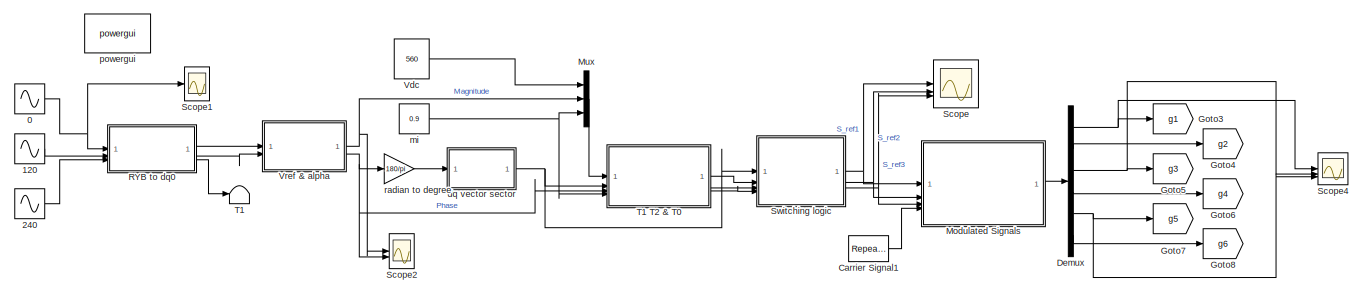
[diagram: root canvas - part 1/2, full width, top band]
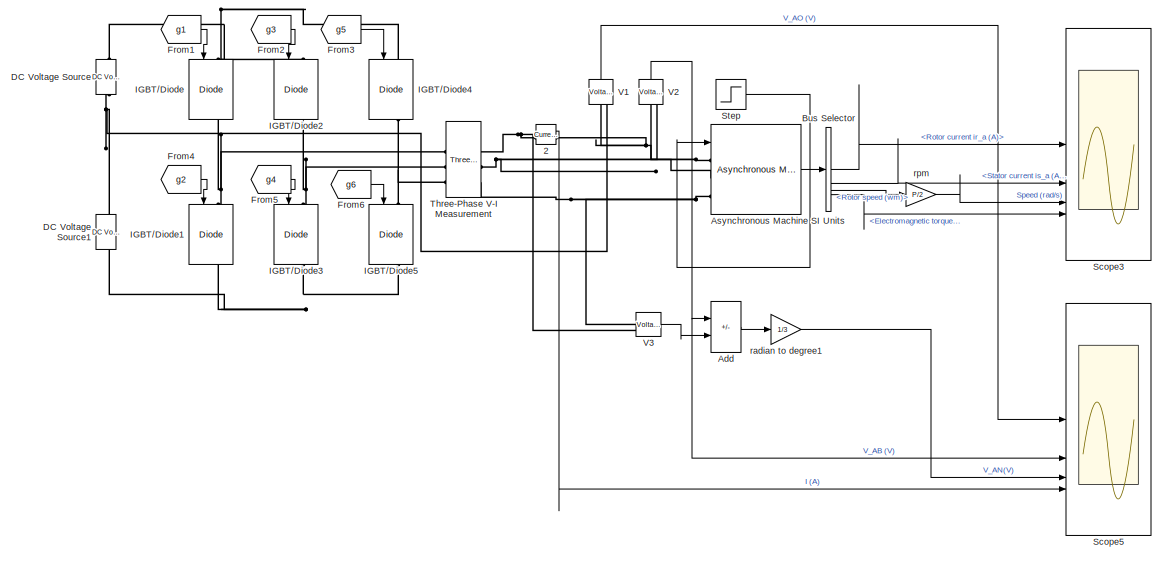
[diagram: root canvas - part 2/2, full width, bottom band]
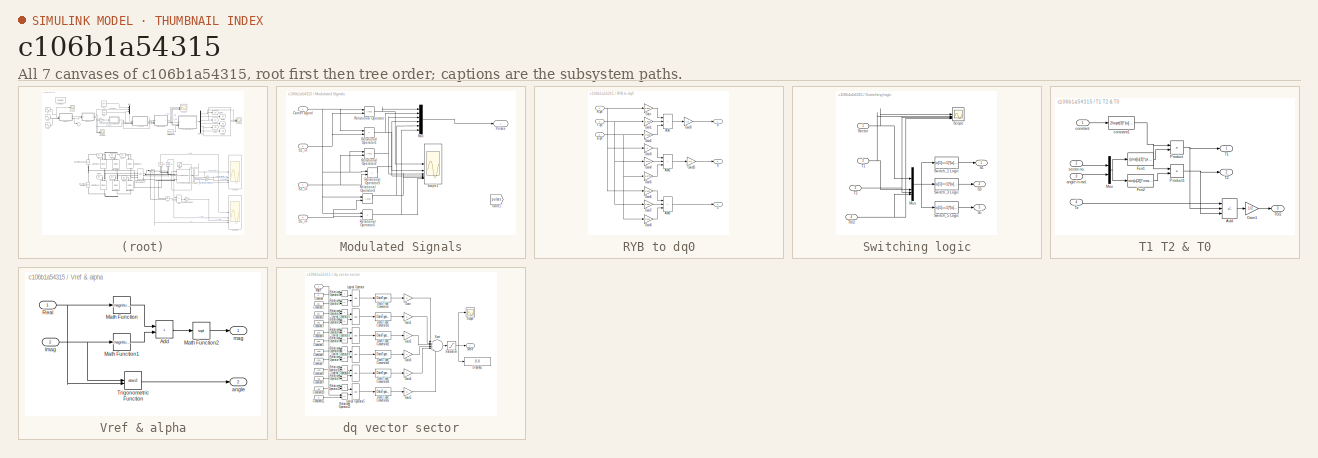
[diagram: thumbnail index - all 7 canvases of the model, root first then tree order]
MODEL slx_c106b1a54315
KIND model
CONFIG AbsTol = auto
CONFIG EnableMultiTasking = off
CONFIG FixedStep = auto
CONFIG InitFcn = clear;\nclc;\n%Induction machine model\nRs=1.5313;\nRr=1.5313;\nRr1=Rr;\nRr=1*Rr;\nM=0.21;\nLs=0.2194;\nLr=Ls;\nLls=0.0094;\nLlr=Lls;\nJ=0.25;\nP=4;\n%B=0.0248;\nTs=Ls/Rs;\nTr=Lr/Rr1;\nsigma=1-M*M/(Ls*Lr);\nsigma_s=Lls/M;\nsigma_r=Llr/M;\nKt=(2/3)*(P/2)*M/(1+sigma_r);\nC=Lr*Ls-M*M;\nG=17.4;\nImr_rated=6.439;\n\n\n%Controller parameters\nvsd_lim=13.015;\nvsq_lim=26.613;\nisq_lim=14.483*Kt*Imr_rated;\nisd_lim=7.083;\nTd=0.012; %d...<+228ch>
CONFIG MaxStep = auto
CONFIG MinStep = auto
CONFIG RelTol = 1e-3
CONFIG SampleTimeConstraint = Unconstrained
CONFIG SolverName = VariableStepAuto
CONFIG StartTime = 0.0
CONFIG StopTime = 10.0
BLOCK [Sin] 0
  Amplitude = 230*1.414
  Frequency = 2*pi*50
  SampleTime = 0
BLOCK [Sin] 120
  Amplitude = 230*1.414
  Frequency = 2*pi*50
  Phase = -(2*pi)/3
  SampleTime = 0
BLOCK [Reference] 2  REF=spsCurrentMeasurementLib/Current Measurement
  LibrarySourceBlock = sps_lib/Sensors and Measurements/Current Measurement
  SourceBlock = spsCurrentMeasurementLib/Current Measurement
  SourceType = Current Measurement
BLOCK [Sin] 240
  Amplitude = 230*1.414
  Frequency = 2*pi*50
  Phase = (2*pi)/3
  SampleTime = 0
BLOCK [Sum] Add
  IconShape = rectangular
  Inputs = +-
BLOCK [Reference] Asynchronous Machine SI Units  REF=spsAsynchronousMachineSIUnitsLib/Asynchronous Machine
SI Units
  LibrarySourceBlock = sps_lib/Electrical Machines/Asynchronous Machine\nSI Units
  SourceBlock = spsAsynchronousMachineSIUnitsLib/Asynchronous Machine\nSI Units
  SourceType = Asynchronous Machine
BLOCK [BusSelector] Bus Selector
  OutputSignals = Rotor measurements.Rotor current ir_a (A),Stator measurements.Stator current is_a (A),Mechanical.Rotor speed (wm),Mechanical.Electromagnetic torque Te (N*m)
BLOCK [Reference] Carrier Signal1  REF=simulink/Sources/Repeating
Sequence
  SourceBlock = simulink/Sources/Repeating\nSequence
  SourceType = Repeating table
BLOCK [Reference] DC Voltage Source  REF=spsDCVoltageSourceLib/DC Voltage Source
  LibrarySourceBlock = sps_lib/Sources/DC Voltage Source
  NameLocation = right
  SourceBlock = spsDCVoltageSourceLib/DC Voltage Source
  SourceType = DC Voltage Source
BLOCK [Reference] DC Voltage Source1  REF=spsDCVoltageSourceLib/DC Voltage Source
  LibrarySourceBlock = sps_lib/Sources/DC Voltage Source
  NameLocation = right
  SourceBlock = spsDCVoltageSourceLib/DC Voltage Source
  SourceType = DC Voltage Source
BLOCK [Demux] Demux
  Outputs = 6
BLOCK [From] From1
  GotoTag = g1
  TagVisibility = global
BLOCK [From] From2
  GotoTag = g3
  TagVisibility = global
BLOCK [From] From3
  GotoTag = g5
  TagVisibility = global
BLOCK [From] From4
  GotoTag = g2
  TagVisibility = global
BLOCK [From] From5
  GotoTag = g4
  TagVisibility = global
BLOCK [From] From6
  GotoTag = g6
  TagVisibility = global
BLOCK [Goto] Goto3
  GotoTag = g1
  TagVisibility = global
BLOCK [Goto] Goto4
  GotoTag = g2
  TagVisibility = global
BLOCK [Goto] Goto5
  GotoTag = g3
  TagVisibility = global
BLOCK [Goto] Goto6
  GotoTag = g4
  TagVisibility = global
BLOCK [Goto] Goto7
  GotoTag = g5
  TagVisibility = global
BLOCK [Goto] Goto8
  GotoTag = g6
  TagVisibility = global
BLOCK [Reference] IGBT//Diode  REF=spsIGBTDiodeLib/IGBT//Diode
  LibrarySourceBlock = sps_lib/Power Electronics/IGBT//Diode
  NameLocation = left
  SourceBlock = spsIGBTDiodeLib/IGBT//Diode
  SourceType = IGBT/Diode
BLOCK [Reference] IGBT//Diode1  REF=spsIGBTDiodeLib/IGBT//Diode
  LibrarySourceBlock = sps_lib/Power Electronics/IGBT//Diode
  NameLocation = left
  SourceBlock = spsIGBTDiodeLib/IGBT//Diode
  SourceType = IGBT/Diode
BLOCK [Reference] IGBT//Diode2  REF=spsIGBTDiodeLib/IGBT//Diode
  LibrarySourceBlock = sps_lib/Power Electronics/IGBT//Diode
  NameLocation = left
  SourceBlock = spsIGBTDiodeLib/IGBT//Diode
  SourceType = IGBT/Diode
BLOCK [Reference] IGBT//Diode3  REF=spsIGBTDiodeLib/IGBT//Diode
  LibrarySourceBlock = sps_lib/Power Electronics/IGBT//Diode
  NameLocation = left
  SourceBlock = spsIGBTDiodeLib/IGBT//Diode
  SourceType = IGBT/Diode
BLOCK [Reference] IGBT//Diode4  REF=spsIGBTDiodeLib/IGBT//Diode
  LibrarySourceBlock = sps_lib/Power Electronics/IGBT//Diode
  NameLocation = left
  SourceBlock = spsIGBTDiodeLib/IGBT//Diode
  SourceType = IGBT/Diode
BLOCK [Reference] IGBT//Diode5  REF=spsIGBTDiodeLib/IGBT//Diode
  LibrarySourceBlock = sps_lib/Power Electronics/IGBT//Diode
  NameLocation = left
  SourceBlock = spsIGBTDiodeLib/IGBT//Diode
  SourceType = IGBT/Diode
BLOCK [SubSystem] Modulated Signals
BLOCK [Inport] Modulated Signals/Carrier signal 
  Port = 4
BLOCK [Goto] Modulated Signals/Goto1
  Commented = on
  GotoTag = pulses
  TagVisibility = global
BLOCK [Mux] Modulated Signals/Mux
  DisplayOption = bar
  Inputs = 6
BLOCK [Outport] Modulated Signals/Pulses 
BLOCK [RelationalOperator] Modulated Signals/Relational Operator
  InputSameDT = off
  OutDataTypeStr = boolean
BLOCK [RelationalOperator] Modulated Signals/Relational Operator1
  InputSameDT = off
  Operator = <
  OutDataTypeStr = boolean
BLOCK [RelationalOperator] Modulated Signals/Relational Operator2
  InputSameDT = off
  OutDataTypeStr = boolean
BLOCK [RelationalOperator] Modulated Signals/Relational Operator3
  InputSameDT = off
  Operator = <
  OutDataTypeStr = boolean
BLOCK [RelationalOperator] Modulated Signals/Relational Operator4
  InputSameDT = off
  OutDataTypeStr = boolean
BLOCK [RelationalOperator] Modulated Signals/Relational Operator5
  InputSameDT = off
  Operator = <
  OutDataTypeStr = boolean
BLOCK [Inport] Modulated Signals/S1_in
BLOCK [Inport] Modulated Signals/S3_in
  Port = 2
BLOCK [Inport] Modulated Signals/S5_in
  Port = 3
BLOCK [Scope] Modulated Signals/Scope1
  Floating = off
  NumInputPorts = 6
  ScopeSpecificationString = Simulink.scopes.TimeScopeBlockCfg('CurrentConfiguration', extmgr.ConfigurationSet(extmgr.Configuration('Core','General UI',true),extmgr.Configuration('Core','Source UI',true),extmgr.Configuration('Sources','WiredSimulink',true,'DataLoggingVariableName','ScopeData1','DataLoggingSaveFormat','StructureWithTime','DataLoggingDecimation','1','DataLoggingDecimateData',true),extmgr.Configuration('Visuals'...<+5197ch>
BLOCK [Mux] Mux
  DisplayOption = bar
  Inputs = 3
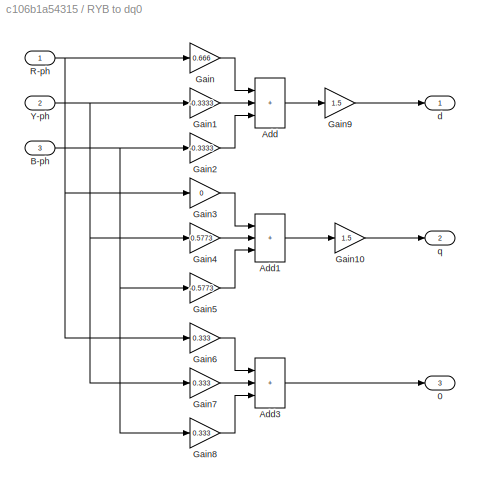
BLOCK [SubSystem] RYB to dq0
BLOCK [Outport] RYB to dq0/0
  Port = 3
BLOCK [Sum] RYB to dq0/Add
  IconShape = rectangular
  Inputs = +++
BLOCK [Sum] RYB to dq0/Add1
  IconShape = rectangular
  Inputs = +++
BLOCK [Sum] RYB to dq0/Add3
  IconShape = rectangular
  Inputs = +++
BLOCK [Inport] RYB to dq0/B-ph
  Port = 3
BLOCK [Gain] RYB to dq0/Gain
  Gain = 0.666
BLOCK [Gain] RYB to dq0/Gain1
  Gain = -0.3333
BLOCK [Gain] RYB to dq0/Gain10
  Gain = 1.5
BLOCK [Gain] RYB to dq0/Gain2
  Gain = -0.3333
BLOCK [Gain] RYB to dq0/Gain3
  Gain = 0
BLOCK [Gain] RYB to dq0/Gain4
  Gain = 0.5773
BLOCK [Gain] RYB to dq0/Gain5
  Gain = -0.5773
BLOCK [Gain] RYB to dq0/Gain6
  Gain = 0.333
BLOCK [Gain] RYB to dq0/Gain7
  Gain = 0.333
BLOCK [Gain] RYB to dq0/Gain8
  Gain = 0.333
BLOCK [Gain] RYB to dq0/Gain9
  Gain = 1.5
BLOCK [Inport] RYB to dq0/R-ph
BLOCK [Inport] RYB to dq0/Y-ph
  Port = 2
BLOCK [Outport] RYB to dq0/d
BLOCK [Outport] RYB to dq0/q
  Port = 2
BLOCK [Scope] Scope
  Floating = off
  NumInputPorts = 3
  ScopeSpecificationString = Simulink.scopes.TimeScopeBlockCfg('CurrentConfiguration', extmgr.ConfigurationSet(extmgr.Configuration('Core','General UI',true,'FigureColor',[1 1 1]),extmgr.Configuration('Core','Source UI',true),extmgr.Configuration('Sources','WiredSimulink',true,'DataLogging',true,'DataLoggingSaveFormat','StructureWithTime','DataLoggingDecimation','1','DataLoggingDecimateData',true,'DataLoggingVariableName','Sc...<+3364ch>
BLOCK [Scope] Scope1
  Floating = off
  NumInputPorts = 1
  ScopeSpecificationString = Simulink.scopes.TimeScopeBlockCfg('CurrentConfiguration', extmgr.ConfigurationSet(extmgr.Configuration('Core','General UI',true,'FigureColor',[1 1 1]),extmgr.Configuration('Core','Source UI',true),extmgr.Configuration('Sources','WiredSimulink',true,'DataLogging',true,'DataLoggingVariableName','ScopeData2','DataLoggingSaveFormat','StructureWithTime','DataLoggingDecimation','1','DataLoggingDecimateD...<+1864ch>
BLOCK [Scope] Scope2
  Floating = off
  NumInputPorts = 2
  ScopeSpecificationString = Simulink.scopes.TimeScopeBlockCfg('CurrentConfiguration', extmgr.ConfigurationSet(extmgr.Configuration('Core','General UI',true,'FigureColor',[1 1 1]),extmgr.Configuration('Core','Source UI',true),extmgr.Configuration('Sources','WiredSimulink',true,'DataLogging',true,'DataLoggingVariableName','ScopeData3','DataLoggingSaveFormat','StructureWithTime','DataLoggingDecimation','1','DataLoggingDecimateD...<+2572ch>
BLOCK [Scope] Scope3
  Floating = off
  NumInputPorts = 4
  ScopeSpecificationString = Simulink.scopes.TimeScopeBlockCfg('CurrentConfiguration', extmgr.ConfigurationSet(extmgr.Configuration('Core','General UI',true,'FigureColor',[1 1 1]),extmgr.Configuration('Core','Source UI',true),extmgr.Configuration('Sources','WiredSimulink',true,'DataLogging',true,'DataLoggingVariableName','ScopeData4','DataLoggingSaveFormat','StructureWithTime','DataLoggingDecimation','1','DataLoggingDecimateD...<+4288ch>
BLOCK [Scope] Scope4
  Floating = off
  NumInputPorts = 3
  ScopeSpecificationString = Simulink.scopes.TimeScopeBlockCfg('CurrentConfiguration', extmgr.ConfigurationSet(extmgr.Configuration('Core','General UI',true,'FigureColor',[1 1 1]),extmgr.Configuration('Core','Source UI',true),extmgr.Configuration('Sources','WiredSimulink',true,'DataLoggingVariableName','ScopeData5'),extmgr.Configuration('Visuals','Time Domain',true,'TimeAxisLabels','All','SerializedDisplays',{struct('MinYLimR...<+3207ch>
BLOCK [Scope] Scope5
  Floating = off
  NumInputPorts = 4
  ScopeSpecificationString = Simulink.scopes.TimeScopeBlockCfg('CurrentConfiguration', extmgr.ConfigurationSet(extmgr.Configuration('Core','General UI',true,'FigureColor',[1 1 1]),extmgr.Configuration('Core','Source UI',true),extmgr.Configuration('Sources','WiredSimulink',true,'DataLogging',true,'DataLoggingVariableName','ScopeData6','DataLoggingSaveFormat','StructureWithTime','DataLoggingDecimation','1','DataLoggingDecimateD...<+4197ch>
BLOCK [Step] Step
  After = 23
  SampleTime = 0
  Time = 2
BLOCK [SubSystem] Switching logic
BLOCK [Mux] Switching logic/Mux
  DisplayOption = bar
BLOCK [Outport] Switching logic/S1
BLOCK [Outport] Switching logic/S3
  Port = 2
BLOCK [Outport] Switching logic/S5
  Port = 3
BLOCK [Scope] Switching logic/Scope
  Floating = off
  NumInputPorts = 4
  ScopeSpecificationString = Simulink.scopes.TimeScopeBlockCfg('CurrentConfiguration', extmgr.ConfigurationSet(extmgr.Configuration('Core','General UI',true),extmgr.Configuration('Core','Source UI',true),extmgr.Configuration('Sources','WiredSimulink',true,'DataLoggingVariableName','ScopeData7'),extmgr.Configuration('Visuals','Time Domain',true),extmgr.Configuration('Tools','Plot Navigation',true),extmgr.Configuration('Tools',...<+40ch>
BLOCK [Inport] Switching logic/Sector
BLOCK [Fcn] Switching logic/Switch_1 Logic
  Expr = (u[1]==1)*(u[2]+u[3]+u[4])+(u[1]==2)*(u[2]+u[4])+(u[1]==3)*(u[4])+(u[1]==4)*(u[4])+(u[1]==5)*(u[3]+u[4])+(u[1]==6)*(u[2]+u[3]+u[4])
BLOCK [Fcn] Switching logic/Switch_3 Logic
  Expr = (u[1]==1)*(u[3]+u[4])+(u[1]==2)*(u[2]+u[3]+u[4])+(u[1]==3)*(u[2]+u[3]+u[4])+(u[1]==4)*(u[2]+u[4])+(u[1]==5)*(u[4])+(u[1]==6)*(u[4])
BLOCK [Fcn] Switching logic/Switch_5 Logic
  Expr = (u[1]==1)*(u[4])+(u[1]==2)*(u[4])+(u[1]==3)*(u[3]+u[4])+(u[1]==4)*(u[2]+u[3]+u[4])+(u[1]==5)*(u[2]+u[3]+u[4])+(u[1]==6)*(u[2]+u[4])
BLOCK [Inport] Switching logic/T0//2
  Port = 4
BLOCK [Inport] Switching logic/T1
  Port = 2
BLOCK [Inport] Switching logic/T2
  Port = 3
BLOCK [Terminator] T1
BLOCK [SubSystem] T1 T2 & T0
BLOCK [Sum] T1 T2 & T0/Add
  IconShape = rectangular
  Inputs = +--
BLOCK [Fcn] T1 T2 & T0/Fcn1
  Expr = (sin((u[1]*pi)/3)*cos(u[2]))-(cos((u[1]*pi)/3)*sin(u[2]))
BLOCK [Fcn] T1 T2 & T0/Fcn2
  Expr = sin(u[2])*cos(((u[1]-1)*pi)/3)-cos(u[2])*sin(((u[1]-1)*pi)/3)
BLOCK [Gain] T1 T2 & T0/Gain1
  Gain = 1/2
BLOCK [Mux] T1 T2 & T0/Mux
  DisplayOption = bar
  Inputs = 2
BLOCK [Product] T1 T2 & T0/Product
  RndMeth = Zero
BLOCK [Product] T1 T2 & T0/Product1
  RndMeth = Zero
BLOCK [Outport] T1 T2 & T0/T0//2
  Port = 3
BLOCK [Outport] T1 T2 & T0/T1
BLOCK [Outport] T1 T2 & T0/T2
  Port = 2
BLOCK [Inport] T1 T2 & T0/Tz
  Port = 4
BLOCK [Inport] T1 T2 & T0/angle in rad.
  Port = 3
BLOCK [Inport] T1 T2 & T0/constant
BLOCK [Fcn] T1 T2 & T0/constant1
  Expr = 2/sqrt(3)*(u[3]*u[2])/u[1]
BLOCK [Inport] T1 T2 & T0/sector no.
  Port = 2
BLOCK [Reference] Three-Phase V-I Measurement  REF=spsThreePhaseVIMeasurementLib/Three-Phase
V-I Measurement
  LibrarySourceBlock = sps_lib/Sensors and Measurements/Three-Phase\nV-I Measurement
  SourceBlock = spsThreePhaseVIMeasurementLib/Three-Phase\nV-I Measurement
  SourceType = Three-Phase VI Measurement
BLOCK [Reference] V1  REF=spsVoltageMeasurementLib/Voltage Measurement
  LibrarySourceBlock = sps_lib/Sensors and Measurements/Voltage Measurement
  NameLocation = right
  SourceBlock = spsVoltageMeasurementLib/Voltage Measurement
  SourceType = Voltage Measurement
BLOCK [Reference] V2  REF=spsVoltageMeasurementLib/Voltage Measurement
  LibrarySourceBlock = sps_lib/Sensors and Measurements/Voltage Measurement
  NameLocation = right
  SourceBlock = spsVoltageMeasurementLib/Voltage Measurement
  SourceType = Voltage Measurement
BLOCK [Reference] V3  REF=spsVoltageMeasurementLib/Voltage Measurement
  LibrarySourceBlock = sps_lib/Sensors and Measurements/Voltage Measurement
  SourceBlock = spsVoltageMeasurementLib/Voltage Measurement
  SourceType = Voltage Measurement
BLOCK [Constant] Vdc
  Value = 560
BLOCK [SubSystem] Vref & alpha
BLOCK [Sum] Vref & alpha/Add
  IconShape = rectangular
BLOCK [Inport] Vref & alpha/Imag
  Port = 2
BLOCK [Math] Vref & alpha/Math Function
  Operator = magnitude^2
  SignedPower = on
BLOCK [Math] Vref & alpha/Math Function1
  Operator = magnitude^2
  SignedPower = on
BLOCK [Math] Vref & alpha/Math Function2
  Operator = sqrt
  SignedPower = on
BLOCK [Inport] Vref & alpha/Real
BLOCK [Trigonometry] Vref & alpha/Trigonometric Function
  Operator = atan2
BLOCK [Outport] Vref & alpha/angle
  Port = 2
BLOCK [Outport] Vref & alpha/mag
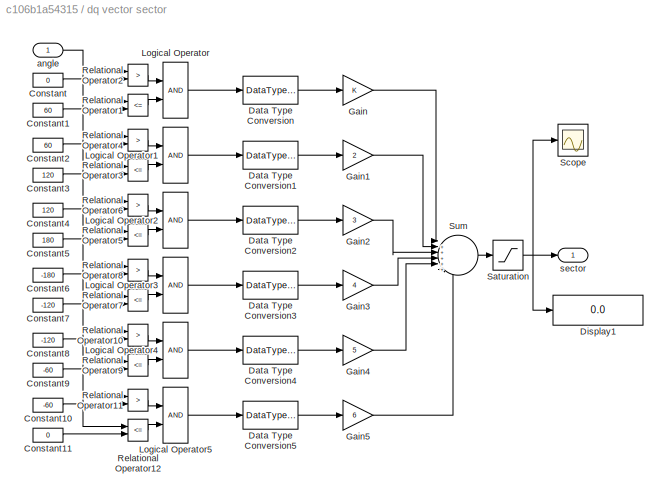
BLOCK [SubSystem] dq vector sector
  AncestorBlock = AC2DriveInternalModels/SVM generator/ab vector sector
BLOCK [Constant] dq vector sector/Constant
  Value = 0
BLOCK [Constant] dq vector sector/Constant1
  Value = 60
BLOCK [Constant] dq vector sector/Constant10
  Value = -60
BLOCK [Constant] dq vector sector/Constant11
  Value = 0
BLOCK [Constant] dq vector sector/Constant2
  Value = 60
BLOCK [Constant] dq vector sector/Constant3
  Value = 120
BLOCK [Constant] dq vector sector/Constant4
  Value = 120
BLOCK [Constant] dq vector sector/Constant5
  Value = 180
BLOCK [Constant] dq vector sector/Constant6
  Value = -180
BLOCK [Constant] dq vector sector/Constant7
  Value = -120
BLOCK [Constant] dq vector sector/Constant8
  Value = -120
BLOCK [Constant] dq vector sector/Constant9
  Value = -60
BLOCK [DataTypeConversion] dq vector sector/Data Type Conversion
BLOCK [DataTypeConversion] dq vector sector/Data Type Conversion1
BLOCK [DataTypeConversion] dq vector sector/Data Type Conversion2
BLOCK [DataTypeConversion] dq vector sector/Data Type Conversion3
BLOCK [DataTypeConversion] dq vector sector/Data Type Conversion4
BLOCK [DataTypeConversion] dq vector sector/Data Type Conversion5
BLOCK [Display] dq vector sector/Display1
  Decimation = 1
BLOCK [Gain] dq vector sector/Gain
  OutDataTypeStr = Inherit: Same as input
  ParamDataTypeStr = Inherit: Same as input
  SaturateOnIntegerOverflow = on
BLOCK [Gain] dq vector sector/Gain1
  Gain = 2
  OutDataTypeStr = Inherit: Same as input
  ParamDataTypeStr = Inherit: Same as input
  SaturateOnIntegerOverflow = on
BLOCK [Gain] dq vector sector/Gain2
  Gain = 3
  OutDataTypeStr = Inherit: Same as input
  ParamDataTypeStr = Inherit: Same as input
  SaturateOnIntegerOverflow = on
BLOCK [Gain] dq vector sector/Gain3
  Gain = 4
  OutDataTypeStr = Inherit: Same as input
  ParamDataTypeStr = Inherit: Same as input
  SaturateOnIntegerOverflow = on
BLOCK [Gain] dq vector sector/Gain4
  Gain = 5
  OutDataTypeStr = Inherit: Same as input
  ParamDataTypeStr = Inherit: Same as input
  SaturateOnIntegerOverflow = on
BLOCK [Gain] dq vector sector/Gain5
  Gain = 6
  OutDataTypeStr = Inherit: Same as input
  ParamDataTypeStr = Inherit: Same as input
  SaturateOnIntegerOverflow = on
BLOCK [Logic] dq vector sector/Logical Operator
BLOCK [Logic] dq vector sector/Logical Operator1
BLOCK [Logic] dq vector sector/Logical Operator2
BLOCK [Logic] dq vector sector/Logical Operator3
BLOCK [Logic] dq vector sector/Logical Operator4
BLOCK [Logic] dq vector sector/Logical Operator5
BLOCK [RelationalOperator] dq vector sector/Relational Operator1
  Operator = <=
BLOCK [RelationalOperator] dq vector sector/Relational Operator10
  Operator = >
BLOCK [RelationalOperator] dq vector sector/Relational Operator11
  Operator = >
BLOCK [RelationalOperator] dq vector sector/Relational Operator12
  Operator = <=
BLOCK [RelationalOperator] dq vector sector/Relational Operator2
  Operator = >
BLOCK [RelationalOperator] dq vector sector/Relational Operator3
  Operator = <=
BLOCK [RelationalOperator] dq vector sector/Relational Operator4
  Operator = >
BLOCK [RelationalOperator] dq vector sector/Relational Operator5
  Operator = <=
BLOCK [RelationalOperator] dq vector sector/Relational Operator6
  Operator = >
BLOCK [RelationalOperator] dq vector sector/Relational Operator7
  Operator = <=
BLOCK [RelationalOperator] dq vector sector/Relational Operator8
  Operator = >
BLOCK [RelationalOperator] dq vector sector/Relational Operator9
  Operator = <=
BLOCK [Saturate] dq vector sector/Saturation
  LowerLimit = 1
  UpperLimit = 6
BLOCK [Scope] dq vector sector/Scope
  Floating = off
  NumInputPorts = 1
  ScopeSpecificationString = Simulink.scopes.TimeScopeBlockCfg('CurrentConfiguration', extmgr.ConfigurationSet(extmgr.Configuration('Core','General UI',true),extmgr.Configuration('Core','Source UI',true),extmgr.Configuration('Sources','WiredSimulink',true,'DataLoggingVariableName','ScopeData2'),extmgr.Configuration('Visuals','Time Domain',true,'SerializedDisplays',{struct('MinYLimReal','0.375','MaxYLimReal','6.625','YLabelRea...<+1397ch>
BLOCK [Sum] dq vector sector/Sum
  InputSameDT = on
  Inputs = |++++++
  OutDataTypeStr = Inherit: Same as first input
  SaturateOnIntegerOverflow = on
BLOCK [Inport] dq vector sector/angle
BLOCK [Outport] dq vector sector/sector
BLOCK [Constant] mi 
  Value = 0.9
BLOCK [Reference] powergui  REF=sps_lib/powergui
  LibrarySourceBlock = sps_lib/powergui
  Priority = 1
  SourceBlock = sps_lib/powergui
  SourceType = PSB option menu block
BLOCK [Gain] radian to degree
  Gain = 180/pi
BLOCK [Gain] radian to degree1
  Gain = 1/3
BLOCK [Gain] rpm
  Gain = P/2
  OutDataTypeStr = Inherit: Same as input
  ParamDataTypeStr = Inherit: Same as input
  SaturateOnIntegerOverflow = on
NET 0:1 -> RYB to dq0:1, Scope1:1
LINE 120:1 -> RYB to dq0:2
LINE 240:1 -> RYB to dq0:3
LINE 2:1 -> Scope5:4
LINE Add:1 -> radian to degree1:1
LINE Asynchronous Machine SI Units:1 -> Bus Selector:1
LINE Bus Selector:1 -> Scope3:1
LINE Bus Selector:2 -> Scope3:2
LINE Bus Selector:3 -> rpm:1
LINE Bus Selector:4 -> Scope3:4
LINE Carrier Signal1:1 -> Modulated Signals:4
NET Demux:1 -> Goto3:1, Scope4:1
LINE Demux:2 -> Goto4:1
NET Demux:3 -> Goto5:1, Scope4:2
LINE Demux:4 -> Goto6:1
NET Demux:5 -> Goto7:1, Scope4:3
LINE Demux:6 -> Goto8:1
LINE From1:1 -> IGBT//Diode:1
LINE From2:1 -> IGBT//Diode2:1
LINE From3:1 -> IGBT//Diode4:1
LINE From4:1 -> IGBT//Diode1:1
LINE From5:1 -> IGBT//Diode3:1
LINE From6:1 -> IGBT//Diode5:1
NET Modulated Signals/Carrier signal :1 -> Modulated Signals/Relational Operator1:1, Modulated Signals/Relational Operator2:1, Modulated Signals/Relational Operator3:1, Modulated Signals/Relational Operator4:1, Modulated Signals/Relational Operator5:1, Modulated Signals/Relational Operator:1
LINE Modulated Signals/Mux:1 -> Modulated Signals/Pulses :1
NET Modulated Signals/Relational Operator1:1 -> Modulated Signals/Mux:2, Modulated Signals/Scope1:2
NET Modulated Signals/Relational Operator2:1 -> Modulated Signals/Mux:3, Modulated Signals/Scope1:3
NET Modulated Signals/Relational Operator3:1 -> Modulated Signals/Mux:4, Modulated Signals/Scope1:4
NET Modulated Signals/Relational Operator4:1 -> Modulated Signals/Mux:5, Modulated Signals/Scope1:5
NET Modulated Signals/Relational Operator5:1 -> Modulated Signals/Mux:6, Modulated Signals/Scope1:6
NET Modulated Signals/Relational Operator:1 -> Modulated Signals/Mux:1, Modulated Signals/Scope1:1
NET Modulated Signals/S1_in:1 -> Modulated Signals/Relational Operator1:2, Modulated Signals/Relational Operator:2
NET Modulated Signals/S3_in:1 -> Modulated Signals/Relational Operator2:2, Modulated Signals/Relational Operator3:2
NET Modulated Signals/S5_in:1 -> Modulated Signals/Relational Operator4:2, Modulated Signals/Relational Operator5:2
LINE Modulated Signals:1 -> Demux:1
LINE Mux:1 -> T1 T2 & T0:1
LINE RYB to dq0/Add1:1 -> RYB to dq0/Gain10:1
LINE RYB to dq0/Add3:1 -> RYB to dq0/0:1
LINE RYB to dq0/Add:1 -> RYB to dq0/Gain9:1
NET RYB to dq0/B-ph:1 -> RYB to dq0/Gain2:1, RYB to dq0/Gain5:1, RYB to dq0/Gain8:1
LINE RYB to dq0/Gain10:1 -> RYB to dq0/q:1
LINE RYB to dq0/Gain1:1 -> RYB to dq0/Add:2
LINE RYB to dq0/Gain2:1 -> RYB to dq0/Add:3
LINE RYB to dq0/Gain3:1 -> RYB to dq0/Add1:1
LINE RYB to dq0/Gain4:1 -> RYB to dq0/Add1:2
LINE RYB to dq0/Gain5:1 -> RYB to dq0/Add1:3
LINE RYB to dq0/Gain6:1 -> RYB to dq0/Add3:1
LINE RYB to dq0/Gain7:1 -> RYB to dq0/Add3:2
LINE RYB to dq0/Gain8:1 -> RYB to dq0/Add3:3
LINE RYB to dq0/Gain9:1 -> RYB to dq0/d:1
LINE RYB to dq0/Gain:1 -> RYB to dq0/Add:1
NET RYB to dq0/R-ph:1 -> RYB to dq0/Gain3:1, RYB to dq0/Gain6:1, RYB to dq0/Gain:1
NET RYB to dq0/Y-ph:1 -> RYB to dq0/Gain1:1, RYB to dq0/Gain4:1, RYB to dq0/Gain7:1
LINE RYB to dq0:1 -> Vref & alpha:1
LINE RYB to dq0:2 -> Vref & alpha:2
LINE RYB to dq0:3 -> T1:1
LINE Step:1 -> Asynchronous Machine SI Units:1
NET Switching logic/Mux:1 -> Switching logic/Switch_1 Logic:1, Switching logic/Switch_3 Logic:1, Switching logic/Switch_5 Logic:1
NET Switching logic/Sector:1 -> Switching logic/Mux:1, Switching logic/Scope:1
LINE Switching logic/Switch_1 Logic:1 -> Switching logic/S1:1
LINE Switching logic/Switch_3 Logic:1 -> Switching logic/S3:1
LINE Switching logic/Switch_5 Logic:1 -> Switching logic/S5:1
NET Switching logic/T0//2:1 -> Switching logic/Mux:4, Switching logic/Scope:4
NET Switching logic/T1:1 -> Switching logic/Mux:2, Switching logic/Scope:2
NET Switching logic/T2:1 -> Switching logic/Mux:3, Switching logic/Scope:3
NET Switching logic:1 -> Modulated Signals:1, Scope:1
NET Switching logic:2 -> Modulated Signals:2, Scope:2
NET Switching logic:3 -> Modulated Signals:3, Scope:3
LINE T1 T2 & T0/Add:1 -> T1 T2 & T0/Gain1:1
LINE T1 T2 & T0/Fcn1:1 -> T1 T2 & T0/Product:2
LINE T1 T2 & T0/Fcn2:1 -> T1 T2 & T0/Product1:2
LINE T1 T2 & T0/Gain1:1 -> T1 T2 & T0/T0//2:1
NET T1 T2 & T0/Mux:1 -> T1 T2 & T0/Fcn1:1, T1 T2 & T0/Fcn2:1
NET T1 T2 & T0/Product1:1 -> T1 T2 & T0/Add:3, T1 T2 & T0/T2:1
NET T1 T2 & T0/Product:1 -> T1 T2 & T0/Add:2, T1 T2 & T0/T1:1
LINE T1 T2 & T0/Tz:1 -> T1 T2 & T0/Add:1
LINE T1 T2 & T0/angle in rad.:1 -> T1 T2 & T0/Mux:2
NET T1 T2 & T0/constant1:1 -> T1 T2 & T0/Product1:1, T1 T2 & T0/Product:1
LINE T1 T2 & T0/constant:1 -> T1 T2 & T0/constant1:1
LINE T1 T2 & T0/sector no.:1 -> T1 T2 & T0/Mux:1
LINE T1 T2 & T0:1 -> Switching logic:2
LINE T1 T2 & T0:2 -> Switching logic:3
LINE T1 T2 & T0:3 -> Switching logic:4
LINE V1:1 -> Scope5:1
NET V2:1 -> Add:1, Scope5:2
LINE V3:1 -> Add:2
LINE Vdc:1 -> Mux:1
LINE Vref & alpha/Add:1 -> Vref & alpha/Math Function2:1
NET Vref & alpha/Imag:1 -> Vref & alpha/Math Function1:1, Vref & alpha/Trigonometric Function:1
LINE Vref & alpha/Math Function1:1 -> Vref & alpha/Add:2
LINE Vref & alpha/Math Function2:1 -> Vref & alpha/mag:1
LINE Vref & alpha/Math Function:1 -> Vref & alpha/Add:1
NET Vref & alpha/Real:1 -> Vref & alpha/Math Function:1, Vref & alpha/Trigonometric Function:2
LINE Vref & alpha/Trigonometric Function:1 -> Vref & alpha/angle:1
NET Vref & alpha:1 -> Mux:2, Scope2:1
NET Vref & alpha:2 -> Scope2:2, T1 T2 & T0:3, radian to degree:1
NET dq vector sector:1 -> Switching logic:1, T1 T2 & T0:2
NET mi :1 -> Mux:3, T1 T2 & T0:4
LINE radian to degree1:1 -> Scope5:3
LINE radian to degree:1 -> dq vector sector:1
LINE rpm:1 -> Scope3:3
PNET net1: 2:LConn1 -- Three-Phase V-I Measurement:RConn1 -- V3:LConn2
PNET net2: 2:RConn1 -- Asynchronous Machine SI Units:LConn1 -- V1:LConn1 -- V2:LConn1
PNET net3: Asynchronous Machine SI Units:LConn2 -- Three-Phase V-I Measurement:RConn2 -- V2:LConn2
PNET net4: Asynchronous Machine SI Units:LConn3 -- Three-Phase V-I Measurement:RConn3 -- V3:LConn1
PNET net5: DC Voltage Source1:LConn1 -- IGBT//Diode1:RConn1 -- IGBT//Diode3:RConn1 -- IGBT//Diode5:RConn1
PNET net6: DC Voltage Source1:RConn1 -- DC Voltage Source:LConn1 -- V1:LConn2
PNET net7: DC Voltage Source:RConn1 -- IGBT//Diode2:LConn1 -- IGBT//Diode4:LConn1 -- IGBT//Diode:LConn1
PNET net8: IGBT//Diode1:LConn1 -- IGBT//Diode:RConn1 -- Three-Phase V-I Measurement:LConn1
PNET net9: IGBT//Diode2:RConn1 -- IGBT//Diode3:LConn1 -- Three-Phase V-I Measurement:LConn2
PNET net10: IGBT//Diode4:RConn1 -- IGBT//Diode5:LConn1 -- Three-Phase V-I Measurement:LConn3
note: NET lines group one-source signal fan-out (src -> all destinations, sorted); 1:1 wires keep LINE; PNET lines group multi-terminal physical nets as a canonical sorted terminal list (undirected conserving connections); 2-terminal nets keep the pairwise PLINE form
